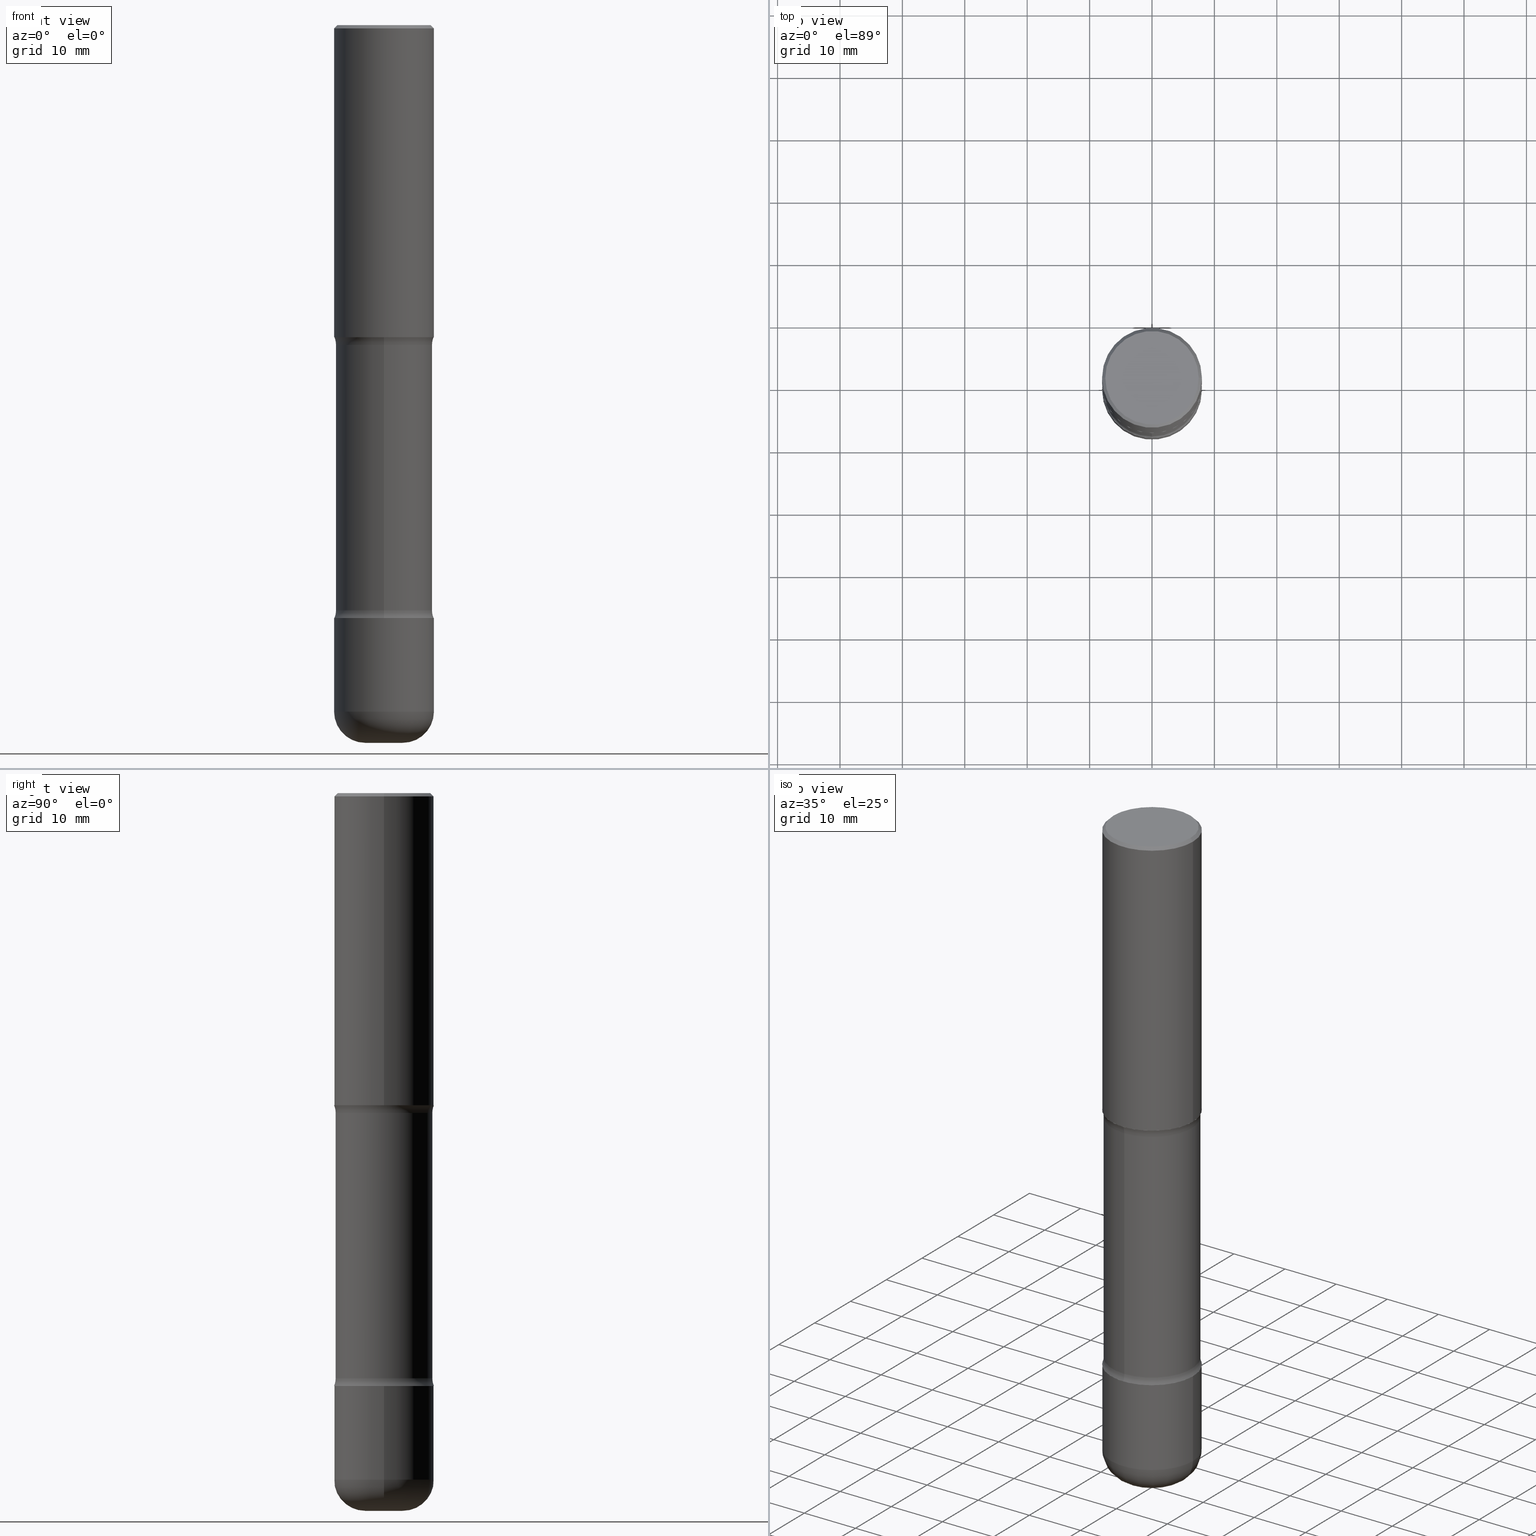
[diagram: canonical four-view strip — front | top / right | iso, engineering-drawing reading convention]
A machine part, canonical four-view strip (front | top / right | iso — engineering-drawing reading convention). The complete STEP part file that produces these views, byte-faithful:
ISO-10303-21;
HEADER;
FILE_DESCRIPTION (( 'STEP AP203' ),
    '1' );
FILE_NAME ('46937.STEP',
    '2024-03-02T06:03:13',
    ( '' ),
    ( '' ),
    'SwSTEP 2.0',
    'SolidWorks 2023',
    '' );
FILE_SCHEMA (( 'CONFIG_CONTROL_DESIGN' ));
ENDSEC;

DATA;
#1 = EDGE_CURVE ( 'NONE', #179, #252, #18, .T. ) ;
#2 = ORIENTED_EDGE ( 'NONE', *, *, #177, .F. ) ;
#3 = CARTESIAN_POINT ( 'NONE',  ( -0.1180500000000002936, -1.392596954901650053E-14, -4.527600000000000513 ) ) ;
#4 = ORIENTED_EDGE ( 'NONE', *, *, #161, .F. ) ;
#5 = ORIENTED_EDGE ( 'NONE', *, *, #34, .T. ) ;
#6 = AXIS2_PLACEMENT_3D ( 'NONE', #396, #95, #315 ) ;
#7 = SECURITY_CLASSIFICATION ( '', '', #330 ) ;
#8 = EDGE_LOOP ( 'NONE', ( #353, #266, #520, #314 ) ) ;
#9 = ORIENTED_EDGE ( 'NONE', *, *, #55, .F. ) ;
#10 = CARTESIAN_POINT ( 'NONE',  ( 4.813905344975441835E-29, -6.872981015512731707E-15, -1.968500000000000139 ) ) ;
#11 = CARTESIAN_POINT ( 'NONE',  ( 0.3149500000000002298, -1.525812259887842581E-14, -3.740200000000000191 ) ) ;
#12 = FACE_OUTER_BOUND ( 'NONE', #262, .T. ) ;
#13 = DIRECTION ( 'NONE',  ( -2.445468806185136597E-29, 3.491481338843145583E-15, 1.000000000000000000 ) ) ;
#14 = AXIS2_PLACEMENT_3D ( 'NONE', #411, #210, #17 ) ;
#15 = ORIENTED_EDGE ( 'NONE', *, *, #514, .F. ) ;
#16 = FACE_OUTER_BOUND ( 'NONE', #219, .T. ) ;
#17 = DIRECTION ( 'NONE',  ( 1.000000000000000000, -6.982962677686264344E-15, 0.000000000000000000 ) ) ;
#18 = CIRCLE ( 'NONE', #345, 0.3049999999999999378 ) ;
#19 = AXIS2_PLACEMENT_3D ( 'NONE', #337, #77, #248 ) ;
#20 = DIRECTION ( 'NONE',  ( 1.000000000000000000, -6.860497997771530774E-15, 4.841945768327149582E-29 ) ) ;
#21 = DIRECTION ( 'NONE',  ( -6.982962677686266711E-15, -1.000000000000000000, 3.491481338843145583E-15 ) ) ;
#22 = DIRECTION ( 'NONE',  ( 6.982962677686265922E-15, 1.000000000000000000, -3.397830769241806549E-15 ) ) ;
#23 = APPROVAL_DATE_TIME ( #154, #407 ) ;
#24 = CARTESIAN_POINT ( 'NONE',  ( 1.107210456688382522E-28, -1.580803090974622705E-14, -4.527600000000000513 ) ) ;
#25 = ADVANCED_FACE ( 'NONE', ( #12 ), #425, .T. ) ;
#26 = DIRECTION ( 'NONE',  ( -2.445468806185136877E-29, 3.491481338843145188E-15, 1.000000000000000000 ) ) ;
#27 = DIRECTION ( 'NONE',  ( -2.445468806185136597E-29, 3.491481338843145583E-15, 1.000000000000000000 ) ) ;
#28 = DIRECTION ( 'NONE',  ( -2.445468806185136597E-29, 3.491481338843145583E-15, 1.000000000000000000 ) ) ;
#29 = CARTESIAN_POINT ( 'NONE',  ( -3.560724751056930893E-29, -3.676307534196019102E-14, -4.527600000000000513 ) ) ;
#30 = LINE ( 'NONE', #247, #559 ) ;
#31 = CIRCLE ( 'NONE', #105, 0.1180500000000002936 ) ;
#32 = DIRECTION ( 'NONE',  ( 2.438088387897960049E-29, -3.491481338843145188E-15, -1.000000000000000000 ) ) ;
#33 = DIRECTION ( 'NONE',  ( 1.000000000000000000, -6.982962677686263555E-15, 0.000000000000000000 ) ) ;
#34 = EDGE_CURVE ( 'NONE', #447, #39, #319, .T. ) ;
#35 = FACE_OUTER_BOUND ( 'NONE', #183, .T. ) ;
#36 = CARTESIAN_POINT ( 'NONE',  ( 9.146542428893648262E-29, -1.305883850354113437E-14, -3.740200000000000191 ) ) ;
#37 = DIMENSIONAL_EXPONENTS ( 1.000000000000000000, 0.000000000000000000, 0.000000000000000000, 0.000000000000000000, 0.000000000000000000, 0.000000000000000000, 0.000000000000000000 ) ;
#38 = APPLICATION_PROTOCOL_DEFINITION ( 'international standard', 'config_control_design', 1994, #433 ) ;
#39 = VERTEX_POINT ( 'NONE', #291 ) ;
#40 = DIRECTION ( 'NONE',  ( 1.000000000000000000, 0.000000000000000000, 0.000000000000000000 ) ) ;
#41 = AXIS2_PLACEMENT_3D ( 'NONE', #495, #135, #483 ) ;
#42 = CIRCLE ( 'NONE', #122, 0.3149499999999998967 ) ;
#43 = ORIENTED_EDGE ( 'NONE', *, *, #249, .T. ) ;
#44 = ORIENTED_EDGE ( 'NONE', *, *, #387, .T. ) ;
#45 = ADVANCED_FACE ( 'NONE', ( #110 ), #272, .T. ) ;
#46 = DIRECTION ( 'NONE',  ( -2.445468806185136597E-29, 3.491481338843145583E-15, 1.000000000000000000 ) ) ;
#47 = ORIENTED_EDGE ( 'NONE', *, *, #227, .F. ) ;
#48 = ORIENTED_EDGE ( 'NONE', *, *, #242, .T. ) ;
#49 = CYLINDRICAL_SURFACE ( 'NONE', #156, 0.3049999999999999378 ) ;
#50 = ORIENTED_EDGE ( 'NONE', *, *, #59, .F. ) ;
#51 = ORIENTED_EDGE ( 'NONE', *, *, #499, .F. ) ;
#52 = CIRCLE ( 'NONE', #368, 0.3149500000000001743 ) ;
#53 = AXIS2_PLACEMENT_3D ( 'NONE', #205, #329, #371 ) ;
#54 = ORIENTED_EDGE ( 'NONE', *, *, #177, .T. ) ;
#55 = EDGE_CURVE ( 'NONE', #39, #133, #426, .T. ) ;
#56 = ORIENTED_EDGE ( 'NONE', *, *, #521, .T. ) ;
#57 = DIRECTION ( 'NONE',  ( -2.445468806185136597E-29, 3.491481338843145583E-15, 1.000000000000000000 ) ) ;
#58 = FACE_OUTER_BOUND ( 'NONE', #444, .T. ) ;
#59 = EDGE_CURVE ( 'NONE', #221, #218, #52, .T. ) ;
#60 = AXIS2_PLACEMENT_3D ( 'NONE', #10, #57, #496 ) ;
#61 = ORIENTED_EDGE ( 'NONE', *, *, #507, .T. ) ;
#62 = APPROVAL_PERSON_ORGANIZATION ( #175, #539, #515 ) ;
#63 = PERSON_AND_ORGANIZATION ( #398, #92 ) ;
#64 = DIRECTION ( 'NONE',  ( 6.982962677686266711E-15, 1.000000000000000000, -3.582751467100674095E-15 ) ) ;
#65 = DIRECTION ( 'NONE',  ( 2.510864649412157880E-29, -3.397830769241806549E-15, -1.000000000000000000 ) ) ;
#66 = DIRECTION ( 'NONE',  ( -1.000000000000000000, 6.982962677686265922E-15, -4.883557194083112901E-29 ) ) ;
#67 = VERTEX_POINT ( 'NONE', #216 ) ;
#68 = ADVANCED_BREP_SHAPE_REPRESENTATION ( '46937', ( #76, #449, #75, #472 ), #463 ) ;
#69 = DIRECTION ( 'NONE',  ( 1.000000000000000000, -6.982962677686266711E-15, 4.883557194083112901E-29 ) ) ;
#70 = CARTESIAN_POINT ( 'NONE',  ( 4.838038961945526264E-29, -7.180209988345923531E-15, -2.017372256956273979 ) ) ;
#71 = CIRCLE ( 'NONE', #137, 0.1249999999999999584 ) ;
#72 = FACE_OUTER_BOUND ( 'NONE', #432, .T. ) ;
#73 = DIRECTION ( 'NONE',  ( 1.000000000000000000, -6.982962677686265922E-15, 0.000000000000000000 ) ) ;
#74 = ADVANCED_FACE ( 'NONE', ( #340 ), #49, .T. ) ;
#75 = MANIFOLD_SOLID_BREP ( 'Body-Move/Copy2[4]', #392 ) ;
#76 = MANIFOLD_SOLID_BREP ( 'Body-Move/Copy2[1]', #268 ) ;
#77 = DIRECTION ( 'NONE',  ( 2.510864649412157880E-29, -3.397830769241806549E-15, -1.000000000000000000 ) ) ;
#78 = CYLINDRICAL_SURFACE ( 'NONE', #488, 0.3149500000000002853 ) ;
#79 = FACE_OUTER_BOUND ( 'NONE', #255, .T. ) ;
#80 = EDGE_CURVE ( 'NONE', #221, #97, #164, .T. ) ;
#81 = CARTESIAN_POINT ( 'NONE',  ( 9.027026849019217051E-29, -1.288820193039115935E-14, -3.691327743043726795 ) ) ;
#82 = AXIS2_PLACEMENT_3D ( 'NONE', #29, #333, #381 ) ;
#83 = CARTESIAN_POINT ( 'NONE',  ( 4.890937612370289799E-31, -6.982962677686315028E-17, -0.02000000000000006981 ) ) ;
#84 = APPROVAL_STATUS ( 'not_yet_approved' ) ;
#85 = EDGE_LOOP ( 'NONE', ( #236, #305, #211, #560 ) ) ;
#86 = PERSON_AND_ORGANIZATION ( #398, #92 ) ;
#87 = CC_DESIGN_PERSON_AND_ORGANIZATION_ASSIGNMENT ( #86, #103, ( #193 ) ) ;
#88 = ORIENTED_EDGE ( 'NONE', *, *, #521, .F. ) ;
#89 = ADVANCED_FACE ( 'NONE', ( #544 ), #467, .F. ) ;
#90 = DIRECTION ( 'NONE',  ( -6.982962677686265922E-15, -1.000000000000000000, 3.397830769241806549E-15 ) ) ;
#91 = AXIS2_PLACEMENT_3D ( 'NONE', #458, #235, #542 ) ;
#92 = ORGANIZATION ( 'UNSPECIFIED', 'UNSPECIFIED', '' ) ;
#93 = VERTEX_POINT ( 'NONE', #423 ) ;
#94 = VERTEX_POINT ( 'NONE', #370 ) ;
#95 = DIRECTION ( 'NONE',  ( -2.445468806185136597E-29, 3.491481338843145583E-15, 1.000000000000000000 ) ) ;
#96 = EDGE_LOOP ( 'NONE', ( #180, #112, #48, #224 ) ) ;
#97 = VERTEX_POINT ( 'NONE', #509 ) ;
#98 = CARTESIAN_POINT ( 'NONE',  ( -0.2949499999999998789, 2.094539655171994924E-15, 1.280553747028672311E-17 ) ) ;
#99 = AXIS2_PLACEMENT_3D ( 'NONE', #100, #412, #326 ) ;
#100 = CARTESIAN_POINT ( 'NONE',  ( 4.820755151858623476E-29, -7.204961388123744804E-15, -2.017372256956273979 ) ) ;
#101 = PLANE ( 'NONE',  #192 ) ;
#102 = ADVANCED_FACE ( 'NONE', ( #198 ), #121, .F. ) ;
#103 = PERSON_AND_ORGANIZATION_ROLE ( 'design_supplier' ) ;
#104 = ADVANCED_FACE ( 'NONE', ( #373 ), #111, .T. ) ;
#105 = AXIS2_PLACEMENT_3D ( 'NONE', #24, #155, #424 ) ;
#106 = ORIENTED_EDGE ( 'NONE', *, *, #364, .T. ) ;
#107 = TOROIDAL_SURFACE ( 'NONE', #139, 0.4300000000000000488, 0.1249999999999999861 ) ;
#108 = DIRECTION ( 'NONE',  ( -2.445468806185136597E-29, 3.491481338843145583E-15, 1.000000000000000000 ) ) ;
#109 = FACE_OUTER_BOUND ( 'NONE', #273, .T. ) ;
#110 = FACE_OUTER_BOUND ( 'NONE', #388, .T. ) ;
#111 = PLANE ( 'NONE',  #82 ) ;
#112 = ORIENTED_EDGE ( 'NONE', *, *, #59, .T. ) ;
#113 = CARTESIAN_POINT ( 'NONE',  ( 0.3149499999999998967, -2.230543471175006266E-15, -0.02000000000000006981 ) ) ;
#114 = CARTESIAN_POINT ( 'NONE',  ( 2.129803616694422103E-15, 0.3049999999999842282, -4.527600000000001401 ) ) ;
#115 = DIRECTION ( 'NONE',  ( 1.000000000000000000, -6.982962677686269077E-15, 0.000000000000000000 ) ) ;
#116 = CIRCLE ( 'NONE', #201, 0.3149500000000003408 ) ;
#117 = DIRECTION ( 'NONE',  ( 6.982962677686265922E-15, 1.000000000000000000, -3.397830769241806549E-15 ) ) ;
#118 = ADVANCED_FACE ( 'NONE', ( #503 ), #362, .F. ) ;
#119 = DIRECTION ( 'NONE',  ( 1.000000000000000000, -6.982962677686267499E-15, 4.876176775795936353E-29 ) ) ;
#120 = PERSON_AND_ORGANIZATION ( #398, #92 ) ;
#121 = TOROIDAL_SURFACE ( 'NONE', #292, 0.4299999999999999378, 0.1249999999999999861 ) ;
#122 = AXIS2_PLACEMENT_3D ( 'NONE', #295, #468, #73 ) ;
#123 = EDGE_LOOP ( 'NONE', ( #44, #267, #176, #477 ) ) ;
#124 = APPROVAL_DATE_TIME ( #349, #431 ) ;
#125 = VERTEX_POINT ( 'NONE', #464 ) ;
#126 = ADVANCED_FACE ( 'NONE', ( #132 ), #408, .T. ) ;
#127 = DATE_AND_TIME ( #207, #369 ) ;
#128 = TOROIDAL_SURFACE ( 'NONE', #505, 0.4300000000000000488, 0.1249999999999999861 ) ;
#129 = CC_DESIGN_APPROVAL ( #431, ( #193 ) ) ;
#130 = ORIENTED_EDGE ( 'NONE', *, *, #169, .F. ) ;
#131 = ORIENTED_EDGE ( 'NONE', *, *, #296, .F. ) ;
#132 = FACE_OUTER_BOUND ( 'NONE', #96, .T. ) ;
#133 = VERTEX_POINT ( 'NONE', #11 ) ;
#134 = ORIENTED_EDGE ( 'NONE', *, *, #334, .T. ) ;
#135 = DIRECTION ( 'NONE',  ( -1.000000000000000000, 6.982962677686265922E-15, -4.883557194083112901E-29 ) ) ;
#136 = EDGE_LOOP ( 'NONE', ( #530, #358, #478, #439 ) ) ;
#137 = AXIS2_PLACEMENT_3D ( 'NONE', #372, #20, #160 ) ;
#138 = CARTESIAN_POINT ( 'NONE',  ( 4.698043529530127941E-29, -7.038901729675425288E-15, -1.968500000000000139 ) ) ;
#139 = AXIS2_PLACEMENT_3D ( 'NONE', #81, #379, #117 ) ;
#140 = DIRECTION ( 'NONE',  ( -6.982962677686267499E-15, -1.000000000000000000, 0.000000000000000000 ) ) ;
#141 = DIRECTION ( 'NONE',  ( 6.860497997771532351E-15, 1.000000000000000000, 0.000000000000000000 ) ) ;
#142 = CARTESIAN_POINT ( 'NONE',  ( 1.112359725384078225E-28, -1.573429045124212958E-14, -4.527600000000000513 ) ) ;
#143 = CARTESIAN_POINT ( 'NONE',  ( 2.199284095337339175E-15, 0.3149499999999932909, -1.968500000000001249 ) ) ;
#144 = LINE ( 'NONE', #328, #512 ) ;
#145 = CIRCLE ( 'NONE', #462, 0.3049999999999999933 ) ;
#146 = ORIENTED_EDGE ( 'NONE', *, *, #466, .F. ) ;
#147 = AXIS2_PLACEMENT_3D ( 'NONE', #36, #308, #386 ) ;
#148 = CALENDAR_DATE ( 2024, 2, 3 ) ;
#149 = DIRECTION ( 'NONE',  ( 2.510864649412157880E-29, -3.397830769241806549E-15, -1.000000000000000000 ) ) ;
#150 = ADVANCED_FACE ( 'NONE', ( #228 ), #336, .T. ) ;
#151 = PERSON_AND_ORGANIZATION ( #398, #92 ) ;
#152 = DIRECTION ( 'NONE',  ( 2.510864649412157880E-29, -3.397830769241806549E-15, -1.000000000000000000 ) ) ;
#153 = CC_DESIGN_DATE_AND_TIME_ASSIGNMENT ( #127, #557, ( #492 ) ) ;
#154 = DATE_AND_TIME ( #148, #202 ) ;
#155 = DIRECTION ( 'NONE',  ( -2.445468806185136597E-29, 3.491481338843145583E-15, 1.000000000000000000 ) ) ;
#156 = AXIS2_PLACEMENT_3D ( 'NONE', #142, #527, #556 ) ;
#157 = CIRCLE ( 'NONE', #427, 0.3149500000000002298 ) ;
#158 = EDGE_CURVE ( 'NONE', #125, #179, #445, .T. ) ;
#159 = DIRECTION ( 'NONE',  ( -2.445468806185136597E-29, 3.491481338843145583E-15, 1.000000000000000000 ) ) ;
#160 = DIRECTION ( 'NONE',  ( 6.860497997771532351E-15, 1.000000000000000000, 0.000000000000000000 ) ) ;
#161 = EDGE_CURVE ( 'NONE', #214, #347, #498, .T. ) ;
#162 = CARTESIAN_POINT ( 'NONE',  ( 4.813905344975441835E-29, -6.872981015512731707E-15, -1.968500000000000139 ) ) ;
#163 = CARTESIAN_POINT ( 'NONE',  ( 0.000000000000000000, 0.000000000000000000, 0.000000000000000000 ) ) ;
#164 = LINE ( 'NONE', #460, #415 ) ;
#165 = CIRCLE ( 'NONE', #220, 0.1249999999999999584 ) ;
#166 = TOROIDAL_SURFACE ( 'NONE', #404, 0.1180500000000002658, 0.1969000000000001582 ) ;
#167 = APPROVAL_ROLE ( '' ) ;
#168 = LOCAL_TIME ( 1, 3, 13.00000000000000000, #250 ) ;
#169 = EDGE_CURVE ( 'NONE', #309, #190, #541, .T. ) ;
#170 = ORIENTED_EDGE ( 'NONE', *, *, #403, .T. ) ;
#171 = ORIENTED_EDGE ( 'NONE', *, *, #413, .T. ) ;
#172 = DIRECTION ( 'NONE',  ( 0.000000000000000000, 0.000000000000000000, 1.000000000000000000 ) ) ;
#173 = DESIGN_CONTEXT ( 'detailed design', #280, 'design' ) ;
#174 = ORIENTED_EDGE ( 'NONE', *, *, #1, .F. ) ;
#175 = PERSON_AND_ORGANIZATION ( #398, #92 ) ;
#176 = ORIENTED_EDGE ( 'NONE', *, *, #507, .F. ) ;
#177 = EDGE_CURVE ( 'NONE', #67, #253, #116, .T. ) ;
#178 = AXIS2_PLACEMENT_3D ( 'NONE', #222, #182, #538 ) ;
#179 = VERTEX_POINT ( 'NONE', #443 ) ;
#180 = ORIENTED_EDGE ( 'NONE', *, *, #80, .F. ) ;
#181 = CARTESIAN_POINT ( 'NONE',  ( 4.890937612370289799E-31, -6.982962677686315028E-17, -0.02000000000000006981 ) ) ;
#182 = DIRECTION ( 'NONE',  ( -2.438088387897960049E-29, 3.491481338843145188E-15, 1.000000000000000000 ) ) ;
#183 = EDGE_LOOP ( 'NONE', ( #15, #43, #245, #47 ) ) ;
#184 = CARTESIAN_POINT ( 'NONE',  ( 4.890937612370289799E-31, -6.982962677686315028E-17, -0.02000000000000006981 ) ) ;
#185 = VECTOR ( 'NONE', #516, 39.37007874015748143 ) ;
#186 = VECTOR ( 'NONE', #26, 39.37007874015748143 ) ;
#187 = EDGE_CURVE ( 'NONE', #97, #321, #558, .T. ) ;
#188 = PLANE ( 'NONE',  #178 ) ;
#189 = CARTESIAN_POINT ( 'NONE',  ( -0.1180500000000002658, -1.428176253456320999E-14, -4.330700000000000216 ) ) ;
#190 = VERTEX_POINT ( 'NONE', #98 ) ;
#191 = ORIENTED_EDGE ( 'NONE', *, *, #227, .T. ) ;
#192 = AXIS2_PLACEMENT_3D ( 'NONE', #537, #474, #90 ) ;
#193 = PRODUCT_DEFINITION_FORMATION_WITH_SPECIFIED_SOURCE ( 'ANY', '', #351, .NOT_KNOWN. ) ;
#194 = CC_DESIGN_PERSON_AND_ORGANIZATION_ASSIGNMENT ( #304, #476, ( #193 ) ) ;
#195 = DIRECTION ( 'NONE',  ( 2.510864649412157600E-29, -3.397830769241806549E-15, -1.000000000000000000 ) ) ;
#196 = FACE_OUTER_BOUND ( 'NONE', #8, .T. ) ;
#197 = EDGE_CURVE ( 'NONE', #93, #261, #145, .T. ) ;
#198 = FACE_OUTER_BOUND ( 'NONE', #350, .T. ) ;
#199 = CARTESIAN_POINT ( 'NONE',  ( 9.023830806565153848E-29, -1.289277884509281722E-14, -3.691327743043726795 ) ) ;
#200 = CC_DESIGN_PERSON_AND_ORGANIZATION_ASSIGNMENT ( #430, #383, ( #492 ) ) ;
#201 = AXIS2_PLACEMENT_3D ( 'NONE', #138, #531, #533 ) ;
#202 = LOCAL_TIME ( 1, 3, 13.00000000000000000, #234 ) ;
#203 = DIRECTION ( 'NONE',  ( 6.982962677686266711E-15, 1.000000000000000000, -3.582751467100674095E-15 ) ) ;
#204 = CALENDAR_DATE ( 2024, 2, 3 ) ;
#205 = CARTESIAN_POINT ( 'NONE',  ( 9.146542428893648262E-29, -1.305883850354113437E-14, -3.740200000000000191 ) ) ;
#206 = FACE_OUTER_BOUND ( 'NONE', #136, .T. ) ;
#207 = CALENDAR_DATE ( 2024, 2, 3 ) ;
#208 = ADVANCED_FACE ( 'NONE', ( #58 ), #101, .F. ) ;
#209 = CARTESIAN_POINT ( 'NONE',  ( 0.3149500000000001743, -9.072265110850023156E-15, -1.968500000000000139 ) ) ;
#210 = DIRECTION ( 'NONE',  ( -2.445468806185136597E-29, 3.491481338843145583E-15, 1.000000000000000000 ) ) ;
#211 = ORIENTED_EDGE ( 'NONE', *, *, #378, .T. ) ;
#212 = AXIS2_PLACEMENT_3D ( 'NONE', #189, #448, #264 ) ;
#213 = CALENDAR_DATE ( 2024, 2, 3 ) ;
#214 = VERTEX_POINT ( 'NONE', #3 ) ;
#215 = EDGE_LOOP ( 'NONE', ( #307, #146, #312, #528 ) ) ;
#216 = CARTESIAN_POINT ( 'NONE',  ( -2.160713844398098792E-15, -0.3149500000000073907, -1.968499999999999028 ) ) ;
#217 = DIRECTION ( 'NONE',  ( 6.982962677686265922E-15, 1.000000000000000000, -3.397830769241806549E-15 ) ) ;
#218 = VERTEX_POINT ( 'NONE', #209 ) ;
#219 = EDGE_LOOP ( 'NONE', ( #4, #522, #5, #441 ) ) ;
#220 = AXIS2_PLACEMENT_3D ( 'NONE', #450, #66, #140 ) ;
#221 = VERTEX_POINT ( 'NONE', #259 ) ;
#222 = CARTESIAN_POINT ( 'NONE',  ( 4.813905344975441835E-29, -6.872981015512731707E-15, -1.968500000000000139 ) ) ;
#223 = ORIENTED_EDGE ( 'NONE', *, *, #197, .T. ) ;
#224 = ORIENTED_EDGE ( 'NONE', *, *, #187, .F. ) ;
#225 = PRODUCT_RELATED_PRODUCT_CATEGORY ( 'detail', '', ( #351 ) ) ;
#226 = DIRECTION ( 'NONE',  ( 1.000000000000000000, -6.860497997771530774E-15, 4.841945768327149582E-29 ) ) ;
#227 = EDGE_CURVE ( 'NONE', #278, #133, #394, .T. ) ;
#228 = FACE_OUTER_BOUND ( 'NONE', #123, .T. ) ;
#229 = CARTESIAN_POINT ( 'NONE',  ( -0.3149500000000002298, -1.185184402255813608E-14, -3.740200000000000191 ) ) ;
#230 = AXIS2_PLACEMENT_3D ( 'NONE', #502, #32, #341 ) ;
#231 = DIRECTION ( 'NONE',  ( -2.445468806185136597E-29, 3.491481338843145583E-15, 1.000000000000000000 ) ) ;
#232 = CIRCLE ( 'NONE', #302, 0.3149500000000002853 ) ;
#233 = DIRECTION ( 'NONE',  ( 6.982962677686266711E-15, 1.000000000000000000, -3.582751467100674095E-15 ) ) ;
#234 = COORDINATED_UNIVERSAL_TIME_OFFSET ( 5, 0, .BEHIND. ) ;
#235 = DIRECTION ( 'NONE',  ( 2.510864649412157880E-29, -3.397830769241806549E-15, -1.000000000000000000 ) ) ;
#236 = ORIENTED_EDGE ( 'NONE', *, *, #364, .F. ) ;
#237 = AXIS2_PLACEMENT_3D ( 'NONE', #277, #231, #491 ) ;
#238 = CONICAL_SURFACE ( 'NONE', #246, 0.3149499999999998967, 0.7853981633974460586 ) ;
#239 = CALENDAR_DATE ( 2024, 2, 3 ) ;
#240 = DIRECTION ( 'NONE',  ( 1.000000000000000000, -6.982962677686266711E-15, 4.876176775795936353E-29 ) ) ;
#241 = DIRECTION ( 'NONE',  ( -2.445468806185136877E-29, 3.491481338843145188E-15, 1.000000000000000000 ) ) ;
#242 = EDGE_CURVE ( 'NONE', #218, #321, #144, .T. ) ;
#243 = UNCERTAINTY_MEASURE_WITH_UNIT (LENGTH_MEASURE( 1.000000000000000082E-05 ), #438, 'distance_accuracy_value', 'NONE');
#244 = DIRECTION ( 'NONE',  ( -2.445468806185136597E-29, 3.491481338843145583E-15, 1.000000000000000000 ) ) ;
#245 = ORIENTED_EDGE ( 'NONE', *, *, #55, .T. ) ;
#246 = AXIS2_PLACEMENT_3D ( 'NONE', #83, #258, #554 ) ;
#247 = CARTESIAN_POINT ( 'NONE',  ( -0.3149499999999998967, 2.129454468560425784E-15, -0.02000000000000006981 ) ) ;
#248 = DIRECTION ( 'NONE',  ( 6.982962677686265922E-15, 1.000000000000000000, -3.397830769241806549E-15 ) ) ;
#249 = EDGE_CURVE ( 'NONE', #347, #39, #269, .T. ) ;
#250 = COORDINATED_UNIVERSAL_TIME_OFFSET ( 5, 0, .BEHIND. ) ;
#251 = CC_DESIGN_PERSON_AND_ORGANIZATION_ASSIGNMENT ( #120, #511, ( #351 ) ) ;
#252 = VERTEX_POINT ( 'NONE', #536 ) ;
#253 = VERTEX_POINT ( 'NONE', #143 ) ;
#254 = APPLICATION_PROTOCOL_DEFINITION ( 'international standard', 'config_control_design', 1994, #280 ) ;
#255 = EDGE_LOOP ( 'NONE', ( #393, #2 ) ) ;
#256 = AXIS2_PLACEMENT_3D ( 'NONE', #265, #21, #115 ) ;
#257 = CIRCLE ( 'NONE', #549, 0.3049999999999999378 ) ;
#258 = DIRECTION ( 'NONE',  ( 2.445468806185136597E-29, -3.491481338843145583E-15, -1.000000000000000000 ) ) ;
#259 = CARTESIAN_POINT ( 'NONE',  ( -0.3149500000000001743, -1.233550974868359743E-15, -1.968500000000000139 ) ) ;
#260 = ADVANCED_FACE ( 'NONE', ( #494 ), #128, .F. ) ;
#261 = VERTEX_POINT ( 'NONE', #410 ) ;
#262 = EDGE_LOOP ( 'NONE', ( #130, #518, #170, #359 ) ) ;
#263 = EDGE_LOOP ( 'NONE', ( #484, #50 ) ) ;
#264 = DIRECTION ( 'NONE',  ( -1.000000000000000000, 7.105427357601006592E-15, 0.000000000000000000 ) ) ;
#265 = CARTESIAN_POINT ( 'NONE',  ( 0.1180500000000002658, -1.594489697822887608E-14, -4.330700000000000216 ) ) ;
#266 = ORIENTED_EDGE ( 'NONE', *, *, #360, .T. ) ;
#267 = ORIENTED_EDGE ( 'NONE', *, *, #161, .T. ) ;
#268 = CLOSED_SHELL ( 'NONE', ( #45, #150, #104, #317, #452, #547 ) ) ;
#269 = CIRCLE ( 'NONE', #384, 0.3149500000000002853 ) ;
#270 = AXIS2_PLACEMENT_3D ( 'NONE', #419, #473, #217 ) ;
#271 = DIRECTION ( 'NONE',  ( 6.982962677686266711E-15, 1.000000000000000000, -3.582751467100673306E-15 ) ) ;
#272 = CYLINDRICAL_SURFACE ( 'NONE', #357, 0.3149500000000002853 ) ;
#273 = EDGE_LOOP ( 'NONE', ( #223, #106, #174, #352 ) ) ;
#274 = EDGE_CURVE ( 'NONE', #261, #93, #327, .T. ) ;
#275 = CARTESIAN_POINT ( 'NONE',  ( 4.820755151858623476E-29, -7.204961388123744804E-15, -2.017372256956273979 ) ) ;
#276 = CYLINDRICAL_SURFACE ( 'NONE', #471, 0.3049999999999999378 ) ;
#277 = CARTESIAN_POINT ( 'NONE',  ( 0.000000000000000000, 0.000000000000000000, 0.000000000000000000 ) ) ;
#278 = VERTEX_POINT ( 'NONE', #229 ) ;
#279 = DIRECTION ( 'NONE',  ( -2.445468806185136597E-29, 3.491481338843145583E-15, 1.000000000000000000 ) ) ;
#280 = APPLICATION_CONTEXT ( 'configuration controlled 3d designs of mechanical parts and assemblies' ) ;
#281 = VECTOR ( 'NONE', #195, 39.37007874015748143 ) ;
#282 = ADVANCED_FACE ( 'NONE', ( #109 ), #276, .T. ) ;
#283 = ORIENTED_EDGE ( 'NONE', *, *, #413, .F. ) ;
#284 = DIRECTION ( 'NONE',  ( 1.000000000000000000, -6.982962677686261189E-15, 0.000000000000000000 ) ) ;
#285 = CARTESIAN_POINT ( 'NONE',  ( 4.698043529530127941E-29, -7.038901729675425288E-15, -1.968500000000000139 ) ) ;
#286 = EDGE_CURVE ( 'NONE', #253, #67, #525, .T. ) ;
#287 = CARTESIAN_POINT ( 'NONE',  ( 1.059059175894597327E-28, -1.512055823412801291E-14, -4.330700000000000216 ) ) ;
#288 = DIRECTION ( 'NONE',  ( -2.445468806185136877E-29, 3.491481338843145188E-15, 1.000000000000000000 ) ) ;
#289 = CARTESIAN_POINT ( 'NONE',  ( -0.3149500000000002853, 2.237854346276437562E-15, -1.549218606675783797E-29 ) ) ;
#290 = DIRECTION ( 'NONE',  ( -0.7071067811865459074, 2.468850131082240100E-15, -0.7071067811865491270 ) ) ;
#291 = CARTESIAN_POINT ( 'NONE',  ( 0.3149500000000003408, -1.731984232946530120E-14, -4.330700000000000216 ) ) ;
#292 = AXIS2_PLACEMENT_3D ( 'NONE', #70, #417, #22 ) ;
#293 = DIRECTION ( 'NONE',  ( -2.445468806185136597E-29, 3.491481338843145583E-15, 1.000000000000000000 ) ) ;
#294 = DIRECTION ( 'NONE',  ( 1.000000000000000000, -6.982962677686267499E-15, 4.876176775795936353E-29 ) ) ;
#295 = CARTESIAN_POINT ( 'NONE',  ( 4.890937612370289799E-31, -6.982962677686315028E-17, -0.02000000000000006981 ) ) ;
#296 = EDGE_CURVE ( 'NONE', #93, #253, #165, .T. ) ;
#297 = CARTESIAN_POINT ( 'NONE',  ( 9.146542428893648262E-29, -1.305883850354113437E-14, -3.740200000000000191 ) ) ;
#298 = DIRECTION ( 'NONE',  ( 2.510864649412157880E-29, -3.397830769241806549E-15, -1.000000000000000000 ) ) ;
#299 = DATE_AND_TIME ( #213, #168 ) ;
#300 = CLOSED_SHELL ( 'NONE', ( #469, #25, #555, #89, #493, #126 ) ) ;
#301 = AXIS2_PLACEMENT_3D ( 'NONE', #184, #486, #506 ) ;
#302 = AXIS2_PLACEMENT_3D ( 'NONE', #400, #293, #33 ) ;
#303 = LENGTH_MEASURE_WITH_UNIT ( LENGTH_MEASURE( 0.02539999999999999897 ), #479 );
#304 = PERSON_AND_ORGANIZATION ( #398, #92 ) ;
#305 = ORIENTED_EDGE ( 'NONE', *, *, #274, .T. ) ;
#306 = EDGE_CURVE ( 'NONE', #94, #125, #346, .T. ) ;
#307 = ORIENTED_EDGE ( 'NONE', *, *, #354, .F. ) ;
#308 = DIRECTION ( 'NONE',  ( 2.438088387897960049E-29, -3.491481338843145188E-15, -1.000000000000000000 ) ) ;
#309 = VERTEX_POINT ( 'NONE', #331 ) ;
#310 = CIRCLE ( 'NONE', #60, 0.3149500000000001743 ) ;
#311 = CIRCLE ( 'NONE', #53, 0.3149500000000002298 ) ;
#312 = ORIENTED_EDGE ( 'NONE', *, *, #422, .T. ) ;
#313 = COORDINATED_UNIVERSAL_TIME_OFFSET ( 5, 0, .BEHIND. ) ;
#314 = ORIENTED_EDGE ( 'NONE', *, *, #158, .F. ) ;
#315 = DIRECTION ( 'NONE',  ( 1.000000000000000000, -6.982962677686266711E-15, 4.883557194083112901E-29 ) ) ;
#316 = DIRECTION ( 'NONE',  ( 1.000000000000000000, -6.982962677686265922E-15, 0.000000000000000000 ) ) ;
#317 = ADVANCED_FACE ( 'NONE', ( #16 ), #166, .T. ) ;
#318 = ORIENTED_EDGE ( 'NONE', *, *, #1, .T. ) ;
#319 = CIRCLE ( 'NONE', #256, 0.1969000000000001582 ) ;
#320 = CARTESIAN_POINT ( 'NONE',  ( 1.107210456688382522E-28, -1.580803090974622705E-14, -4.527600000000000513 ) ) ;
#321 = VERTEX_POINT ( 'NONE', #113 ) ;
#322 = AXIS2_PLACEMENT_3D ( 'NONE', #453, #485, #365 ) ;
#323 = DIRECTION ( 'NONE',  ( 6.982962677686265922E-15, 1.000000000000000000, -3.469564049740289220E-15 ) ) ;
#324 = CARTESIAN_POINT ( 'NONE',  ( -0.3149500000000003408, -1.288270388785157219E-14, -4.330700000000000216 ) ) ;
#325 = EDGE_CURVE ( 'NONE', #218, #221, #310, .T. ) ;
#326 = DIRECTION ( 'NONE',  ( 6.982962677686266711E-15, 1.000000000000000000, -3.582751467100673306E-15 ) ) ;
#327 = CIRCLE ( 'NONE', #99, 0.3049999999999999933 ) ;
#328 = CARTESIAN_POINT ( 'NONE',  ( 0.3149500000000000077, -2.199284095337289871E-15, 1.535751875536930130E-29 ) ) ;
#329 = DIRECTION ( 'NONE',  ( -2.445468806185136597E-29, 3.491481338843145583E-15, 1.000000000000000000 ) ) ;
#330 = SECURITY_CLASSIFICATION_LEVEL ( 'unclassified' ) ;
#331 = CARTESIAN_POINT ( 'NONE',  ( 0.2949499999999998789, -2.127023677808859286E-15, 1.280553747031588939E-17 ) ) ;
#332 = CC_DESIGN_PERSON_AND_ORGANIZATION_ASSIGNMENT ( #63, #508, ( #7 ) ) ;
#333 = DIRECTION ( 'NONE',  ( 2.438088387897960049E-29, -3.491481338843145188E-15, -1.000000000000000000 ) ) ;
#334 = EDGE_CURVE ( 'NONE', #261, #67, #414, .T. ) ;
#335 = LINE ( 'NONE', #339, #534 ) ;
#336 = TOROIDAL_SURFACE ( 'NONE', #6, 0.1180500000000002658, 0.1969000000000001582 ) ;
#337 = CARTESIAN_POINT ( 'NONE',  ( 4.838038961945526264E-29, -7.180209988345923531E-15, -2.017372256956273979 ) ) ;
#338 = CYLINDRICAL_SURFACE ( 'NONE', #543, 0.3149500000000000077 ) ;
#339 = CARTESIAN_POINT ( 'NONE',  ( -2.092451889320205392E-15, -0.3050000000000157030, -4.527599999999998737 ) ) ;
#340 = FACE_OUTER_BOUND ( 'NONE', #85, .T. ) ;
#341 = DIRECTION ( 'NONE',  ( -1.000000000000000000, 6.982962677686265922E-15, -4.876176775795935793E-29 ) ) ;
#342 = PLANE ( 'NONE',  #270 ) ;
#343 =( NAMED_UNIT ( * ) SI_UNIT ( $, .STERADIAN. ) SOLID_ANGLE_UNIT ( ) );
#344 = DIRECTION ( 'NONE',  ( 1.000000000000000000, -6.982962677686269866E-15, 0.000000000000000000 ) ) ;
#345 = AXIS2_PLACEMENT_3D ( 'NONE', #457, #65, #233 ) ;
#346 = CIRCLE ( 'NONE', #91, 0.3149500000000002298 ) ;
#347 = VERTEX_POINT ( 'NONE', #324 ) ;
#348 = CC_DESIGN_APPROVAL ( #407, ( #7 ) ) ;
#349 = DATE_AND_TIME ( #204, #489 ) ;
#350 = EDGE_LOOP ( 'NONE', ( #490, #397, #389, #440 ) ) ;
#351 = PRODUCT ( '46937', '46937', '', ( #519 ) ) ;
#352 = ORIENTED_EDGE ( 'NONE', *, *, #378, .F. ) ;
#353 = ORIENTED_EDGE ( 'NONE', *, *, #306, .F. ) ;
#354 = EDGE_CURVE ( 'NONE', #309, #321, #455, .T. ) ;
#355 = APPROVAL_DATE_TIME ( #299, #539 ) ;
#356 = EDGE_LOOP ( 'NONE', ( #385, #134, #54, #131 ) ) ;
#357 = AXIS2_PLACEMENT_3D ( 'NONE', #421, #28, #294 ) ;
#358 = ORIENTED_EDGE ( 'NONE', *, *, #80, .T. ) ;
#359 = ORIENTED_EDGE ( 'NONE', *, *, #422, .F. ) ;
#360 = EDGE_CURVE ( 'NONE', #94, #252, #71, .T. ) ;
#361 = DIRECTION ( 'NONE',  ( -2.445468806185136597E-29, 3.491481338843145583E-15, 1.000000000000000000 ) ) ;
#362 = TOROIDAL_SURFACE ( 'NONE', #19, 0.4299999999999999378, 0.1249999999999999861 ) ;
#363 = DIRECTION ( 'NONE',  ( 2.510864649412157880E-29, -3.397830769241806549E-15, -1.000000000000000000 ) ) ;
#364 = EDGE_CURVE ( 'NONE', #261, #252, #335, .T. ) ;
#365 = DIRECTION ( 'NONE',  ( 1.000000000000000000, -6.982962677686267499E-15, 4.876053491004736589E-29 ) ) ;
#366 = ORIENTED_EDGE ( 'NONE', *, *, #466, .T. ) ;
#367 = DIRECTION ( 'NONE',  ( 1.000000000000000000, -6.982962677686263555E-15, 0.000000000000000000 ) ) ;
#368 = AXIS2_PLACEMENT_3D ( 'NONE', #162, #46, #344 ) ;
#369 = LOCAL_TIME ( 1, 3, 13.00000000000000000, #523 ) ;
#370 = CARTESIAN_POINT ( 'NONE',  ( -2.160713844398053432E-15, -0.3149500000000131639, -3.740199999999998859 ) ) ;
#371 = DIRECTION ( 'NONE',  ( 1.000000000000000000, -6.982962677686264344E-15, 0.000000000000000000 ) ) ;
#372 = CARTESIAN_POINT ( 'NONE',  ( -2.950014139041668531E-15, -0.4300000000000129829, -3.691327743043725018 ) ) ;
#373 = FACE_OUTER_BOUND ( 'NONE', #437, .T. ) ;
#374 = PLANE ( 'NONE',  #147 ) ;
#375 = DATE_TIME_ROLE ( 'classification_date' ) ;
#376 = AXIS2_PLACEMENT_3D ( 'NONE', #451, #226, #141 ) ;
#377 = CC_DESIGN_APPROVAL ( #539, ( #492 ) ) ;
#378 = EDGE_CURVE ( 'NONE', #93, #179, #504, .T. ) ;
#379 = DIRECTION ( 'NONE',  ( 2.510864649412157880E-29, -3.397830769241806549E-15, -1.000000000000000000 ) ) ;
#380 = APPROVAL_STATUS ( 'not_yet_approved' ) ;
#381 = DIRECTION ( 'NONE',  ( -1.000000000000000000, 6.982962677686265922E-15, -4.876176775795935793E-29 ) ) ;
#382 = DIRECTION ( 'NONE',  ( 0.7071067811865459074, -7.319954787623249734E-15, -0.7071067811865491270 ) ) ;
#383 = PERSON_AND_ORGANIZATION_ROLE ( 'creator' ) ;
#384 = AXIS2_PLACEMENT_3D ( 'NONE', #529, #279, #367 ) ;
#385 = ORIENTED_EDGE ( 'NONE', *, *, #274, .F. ) ;
#386 = DIRECTION ( 'NONE',  ( -1.000000000000000000, 6.982962677686265922E-15, -4.876176775795935793E-29 ) ) ;
#387 = EDGE_CURVE ( 'NONE', #447, #214, #31, .T. ) ;
#388 = EDGE_LOOP ( 'NONE', ( #61, #500, #88, #9 ) ) ;
#389 = ORIENTED_EDGE ( 'NONE', *, *, #296, .T. ) ;
#390 = ORIENTED_EDGE ( 'NONE', *, *, #360, .F. ) ;
#391 = ORIENTED_EDGE ( 'NONE', *, *, #169, .T. ) ;
#392 = CLOSED_SHELL ( 'NONE', ( #282, #395, #118, #102, #481, #208, #260, #74 ) ) ;
#393 = ORIENTED_EDGE ( 'NONE', *, *, #286, .F. ) ;
#394 = CIRCLE ( 'NONE', #14, 0.3149500000000002298 ) ;
#395 = ADVANCED_FACE ( 'NONE', ( #196 ), #107, .F. ) ;
#396 = CARTESIAN_POINT ( 'NONE',  ( 1.059059175894597327E-28, -1.512055823412801291E-14, -4.330700000000000216 ) ) ;
#397 = ORIENTED_EDGE ( 'NONE', *, *, #197, .F. ) ;
#398 = PERSON ( 'UNSPECIFIED', 'UNSPECIFIED', 'UNSPECIFIED', ('UNSPECIFIED'), ('UNSPECIFIED'), ('UNSPECIFIED') ) ;
#399 = CARTESIAN_POINT ( 'NONE',  ( 9.027026849019217051E-29, -1.288820193039115935E-14, -3.691327743043726795 ) ) ;
#400 = CARTESIAN_POINT ( 'NONE',  ( 1.059059175894597327E-28, -1.512055823412801291E-14, -4.330700000000000216 ) ) ;
#401 = DIRECTION ( 'NONE',  ( 2.510864649412157880E-29, -3.397830769241806549E-15, -1.000000000000000000 ) ) ;
#402 = DIRECTION ( 'NONE',  ( 2.510864649412157880E-29, -3.397830769241806549E-15, -1.000000000000000000 ) ) ;
#403 = EDGE_CURVE ( 'NONE', #321, #97, #42, .T. ) ;
#404 = AXIS2_PLACEMENT_3D ( 'NONE', #287, #13, #69 ) ;
#405 = CARTESIAN_POINT ( 'NONE',  ( 1.112359725384078225E-28, -1.573429045124212958E-14, -4.527600000000000513 ) ) ;
#406 = AXIS2_PLACEMENT_3D ( 'NONE', #461, #159, #428 ) ;
#407 = APPROVAL ( #418, 'UNSPECIFIED' ) ;
#408 = CYLINDRICAL_SURFACE ( 'NONE', #237, 0.3149500000000000077 ) ;
#409 = SHAPE_DEFINITION_REPRESENTATION ( #524, #68 ) ;
#410 = CARTESIAN_POINT ( 'NONE',  ( -2.126582866859183647E-15, -0.3050000000000072098, -2.017372256956272647 ) ) ;
#411 = CARTESIAN_POINT ( 'NONE',  ( 9.146542428893648262E-29, -1.305883850354113437E-14, -3.740200000000000191 ) ) ;
#412 = DIRECTION ( 'NONE',  ( 2.510864649412157880E-29, -3.397830769241806549E-15, -1.000000000000000000 ) ) ;
#413 = EDGE_CURVE ( 'NONE', #125, #94, #157, .T. ) ;
#414 = CIRCLE ( 'NONE', #376, 0.1249999999999999584 ) ;
#415 = VECTOR ( 'NONE', #288, 39.37007874015748143 ) ;
#416 = CC_DESIGN_SECURITY_CLASSIFICATION ( #7, ( #193 ) ) ;
#417 = DIRECTION ( 'NONE',  ( 2.510864649412157880E-29, -3.397830769241806549E-15, -1.000000000000000000 ) ) ;
#418 = APPROVAL_STATUS ( 'not_yet_approved' ) ;
#419 = CARTESIAN_POINT ( 'NONE',  ( 4.813905344975441835E-29, -6.872981015512731707E-15, -1.968500000000000139 ) ) ;
#420 = DIRECTION ( 'NONE',  ( 6.982962677686264344E-15, 1.000000000000000000, -3.469564049740290403E-15 ) ) ;
#421 = CARTESIAN_POINT ( 'NONE',  ( 0.000000000000000000, 0.000000000000000000, 0.000000000000000000 ) ) ;
#422 = EDGE_CURVE ( 'NONE', #190, #97, #30, .T. ) ;
#423 = CARTESIAN_POINT ( 'NONE',  ( 2.129803616694359388E-15, 0.3049999999999927769, -2.017372256956274867 ) ) ;
#424 = DIRECTION ( 'NONE',  ( 1.000000000000000000, -6.982962677686261189E-15, 0.000000000000000000 ) ) ;
#425 = CONICAL_SURFACE ( 'NONE', #301, 0.3149499999999998967, 0.7853981633974460586 ) ;
#426 = LINE ( 'NONE', #551, #185 ) ;
#427 = AXIS2_PLACEMENT_3D ( 'NONE', #297, #152, #420 ) ;
#428 = DIRECTION ( 'NONE',  ( 1.000000000000000000, -6.982962677686267499E-15, 4.876053491004736589E-29 ) ) ;
#429 = FACE_OUTER_BOUND ( 'NONE', #215, .T. ) ;
#430 = PERSON_AND_ORGANIZATION ( #398, #92 ) ;
#431 = APPROVAL ( #380, 'UNSPECIFIED' ) ;
#432 = EDGE_LOOP ( 'NONE', ( #56, #191 ) ) ;
#433 = APPLICATION_CONTEXT ( 'configuration controlled 3d designs of mechanical parts and assemblies' ) ;
#434 =( NAMED_UNIT ( * ) PLANE_ANGLE_UNIT ( ) SI_UNIT ( $, .RADIAN. ) );
#435 = AXIS2_PLACEMENT_3D ( 'NONE', #181, #361, #316 ) ;
#436 = AXIS2_PLACEMENT_3D ( 'NONE', #320, #108, #284 ) ;
#437 = EDGE_LOOP ( 'NONE', ( #475, #51 ) ) ;
#438 =( CONVERSION_BASED_UNIT ( 'INCH', #303 ) LENGTH_UNIT ( ) NAMED_UNIT ( #37 ) );
#439 = ORIENTED_EDGE ( 'NONE', *, *, #242, .F. ) ;
#440 = ORIENTED_EDGE ( 'NONE', *, *, #286, .T. ) ;
#441 = ORIENTED_EDGE ( 'NONE', *, *, #249, .F. ) ;
#442 = CC_DESIGN_DATE_AND_TIME_ASSIGNMENT ( #540, #375, ( #7 ) ) ;
#443 = CARTESIAN_POINT ( 'NONE',  ( 2.129803616694401198E-15, 0.3049999999999870592, -3.691327743043728127 ) ) ;
#444 = EDGE_LOOP ( 'NONE', ( #171, #480 ) ) ;
#445 = CIRCLE ( 'NONE', #41, 0.1249999999999999584 ) ;
#446 = CIRCLE ( 'NONE', #406, 0.2949499999999998789 ) ;
#447 = VERTEX_POINT ( 'NONE', #465 ) ;
#448 = DIRECTION ( 'NONE',  ( 7.105427357601001859E-15, 1.000000000000000000, -3.491481338843145583E-15 ) ) ;
#449 = MANIFOLD_SOLID_BREP ( 'Body-Move/Copy2[2]', #300 ) ;
#450 = CARTESIAN_POINT ( 'NONE',  ( 3.002673951405142333E-15, 0.4299999999999927769, -2.017372256956275756 ) ) ;
#451 = CARTESIAN_POINT ( 'NONE',  ( -2.950014139041709158E-15, -0.4300000000000070988, -2.017372256956272647 ) ) ;
#452 = ADVANCED_FACE ( 'NONE', ( #35 ), #78, .T. ) ;
#453 = CARTESIAN_POINT ( 'NONE',  ( -3.131554243005663153E-46, 4.471029511141347348E-32, 1.280553747030124924E-17 ) ) ;
#454 = COORDINATED_UNIVERSAL_TIME_OFFSET ( 5, 0, .BEHIND. ) ;
#455 = LINE ( 'NONE', #546, #487 ) ;
#456 = LOCAL_TIME ( 1, 3, 13.00000000000000000, #454 ) ;
#457 = CARTESIAN_POINT ( 'NONE',  ( 9.023830806565153848E-29, -1.289277884509281722E-14, -3.691327743043726795 ) ) ;
#458 = CARTESIAN_POINT ( 'NONE',  ( 9.146542428893648262E-29, -1.305883850354113437E-14, -3.740200000000000191 ) ) ;
#459 = EDGE_CURVE ( 'NONE', #252, #179, #257, .T. ) ;
#460 = CARTESIAN_POINT ( 'NONE',  ( -0.3149500000000000077, 2.237854346276435590E-15, -1.549218606675782676E-29 ) ) ;
#461 = CARTESIAN_POINT ( 'NONE',  ( -3.131554243005663153E-46, 4.471029511141347348E-32, 1.280553747030124924E-17 ) ) ;
#462 = AXIS2_PLACEMENT_3D ( 'NONE', #275, #402, #271 ) ;
#463 =( GEOMETRIC_REPRESENTATION_CONTEXT ( 3 ) GLOBAL_UNCERTAINTY_ASSIGNED_CONTEXT ( ( #243 ) ) GLOBAL_UNIT_ASSIGNED_CONTEXT ( ( #438, #434, #343 ) ) REPRESENTATION_CONTEXT ( 'NONE', 'WORKASPACE' ) );
#464 = CARTESIAN_POINT ( 'NONE',  ( 2.199284095337382168E-15, 0.3149499999999871291, -3.740200000000001079 ) ) ;
#465 = CARTESIAN_POINT ( 'NONE',  ( 0.1180500000000002936, -1.663236965384709338E-14, -4.527600000000000513 ) ) ;
#466 = EDGE_CURVE ( 'NONE', #190, #309, #446, .T. ) ;
#467 = PLANE ( 'NONE',  #230 ) ;
#468 = DIRECTION ( 'NONE',  ( -2.445468806185136597E-29, 3.491481338843145583E-15, 1.000000000000000000 ) ) ;
#469 = ADVANCED_FACE ( 'NONE', ( #206 ), #338, .T. ) ;
#470 = CARTESIAN_POINT ( 'NONE',  ( 0.000000000000000000, 0.000000000000000000, 0.000000000000000000 ) ) ;
#471 = AXIS2_PLACEMENT_3D ( 'NONE', #405, #149, #64 ) ;
#472 = AXIS2_PLACEMENT_3D ( 'NONE', #470, #172, #40 ) ;
#473 = DIRECTION ( 'NONE',  ( 2.510864649412157319E-29, -3.397830769241806549E-15, -1.000000000000000000 ) ) ;
#474 = DIRECTION ( 'NONE',  ( -2.510864649412157319E-29, 3.397830769241806549E-15, 1.000000000000000000 ) ) ;
#475 = ORIENTED_EDGE ( 'NONE', *, *, #387, .F. ) ;
#476 = PERSON_AND_ORGANIZATION_ROLE ( 'creator' ) ;
#477 = ORIENTED_EDGE ( 'NONE', *, *, #34, .F. ) ;
#478 = ORIENTED_EDGE ( 'NONE', *, *, #403, .F. ) ;
#479 =( LENGTH_UNIT ( ) NAMED_UNIT ( * ) SI_UNIT ( $, .METRE. ) );
#480 = ORIENTED_EDGE ( 'NONE', *, *, #306, .T. ) ;
#481 = ADVANCED_FACE ( 'NONE', ( #79 ), #342, .F. ) ;
#482 = EDGE_LOOP ( 'NONE', ( #366, #391 ) ) ;
#483 = DIRECTION ( 'NONE',  ( -6.982962677686267499E-15, -1.000000000000000000, 0.000000000000000000 ) ) ;
#484 = ORIENTED_EDGE ( 'NONE', *, *, #325, .F. ) ;
#485 = DIRECTION ( 'NONE',  ( -2.445468806185136597E-29, 3.491481338843145583E-15, 1.000000000000000000 ) ) ;
#486 = DIRECTION ( 'NONE',  ( 2.445468806185136597E-29, -3.491481338843145583E-15, -1.000000000000000000 ) ) ;
#487 = VECTOR ( 'NONE', #382, 39.37007874015748143 ) ;
#488 = AXIS2_PLACEMENT_3D ( 'NONE', #510, #27, #119 ) ;
#489 = LOCAL_TIME ( 1, 3, 13.00000000000000000, #313 ) ;
#490 = ORIENTED_EDGE ( 'NONE', *, *, #334, .F. ) ;
#491 = DIRECTION ( 'NONE',  ( 1.000000000000000000, -6.982962677686266711E-15, 4.876176775795936353E-29 ) ) ;
#492 = PRODUCT_DEFINITION ( 'UNKNOWN', '', #193, #173 ) ;
#493 = ADVANCED_FACE ( 'NONE', ( #497 ), #188, .F. ) ;
#494 = FACE_OUTER_BOUND ( 'NONE', #532, .T. ) ;
#495 = CARTESIAN_POINT ( 'NONE',  ( 3.002673951405185326E-15, 0.4299999999999871703, -3.691327743043728571 ) ) ;
#496 = DIRECTION ( 'NONE',  ( 1.000000000000000000, -6.982962677686269866E-15, 0.000000000000000000 ) ) ;
#497 = FACE_OUTER_BOUND ( 'NONE', #263, .T. ) ;
#498 = CIRCLE ( 'NONE', #212, 0.1969000000000001582 ) ;
#499 = EDGE_CURVE ( 'NONE', #214, #447, #526, .T. ) ;
#500 = ORIENTED_EDGE ( 'NONE', *, *, #514, .T. ) ;
#501 = DIRECTION ( 'NONE',  ( 6.982962677686265922E-15, 1.000000000000000000, -3.397830769241806549E-15 ) ) ;
#502 = CARTESIAN_POINT ( 'NONE',  ( 2.059624841783563274E-15, 0.2949499999999998789, -1.023409652156634744E-15 ) ) ;
#503 = FACE_OUTER_BOUND ( 'NONE', #356, .T. ) ;
#504 = LINE ( 'NONE', #114, #281 ) ;
#505 = AXIS2_PLACEMENT_3D ( 'NONE', #399, #401, #501 ) ;
#506 = DIRECTION ( 'NONE',  ( -1.000000000000000000, 6.982962677686265922E-15, 0.000000000000000000 ) ) ;
#507 = EDGE_CURVE ( 'NONE', #39, #347, #232, .T. ) ;
#508 = PERSON_AND_ORGANIZATION_ROLE ( 'classification_officer' ) ;
#509 = CARTESIAN_POINT ( 'NONE',  ( -0.3149499999999998967, 2.129454468560425784E-15, -0.02000000000000006981 ) ) ;
#510 = CARTESIAN_POINT ( 'NONE',  ( 0.000000000000000000, 0.000000000000000000, 0.000000000000000000 ) ) ;
#511 = PERSON_AND_ORGANIZATION_ROLE ( 'design_owner' ) ;
#512 = VECTOR ( 'NONE', #241, 39.37007874015748143 ) ;
#513 = APPROVAL_PERSON_ORGANIZATION ( #550, #431, #167 ) ;
#514 = EDGE_CURVE ( 'NONE', #347, #278, #552, .T. ) ;
#515 = APPROVAL_ROLE ( '' ) ;
#516 = DIRECTION ( 'NONE',  ( -2.445468806185136877E-29, 3.491481338843145188E-15, 1.000000000000000000 ) ) ;
#517 = ORIENTED_EDGE ( 'NONE', *, *, #158, .T. ) ;
#518 = ORIENTED_EDGE ( 'NONE', *, *, #354, .T. ) ;
#519 = MECHANICAL_CONTEXT ( 'NONE', #433, 'mechanical' ) ;
#520 = ORIENTED_EDGE ( 'NONE', *, *, #459, .T. ) ;
#521 = EDGE_CURVE ( 'NONE', #133, #278, #311, .T. ) ;
#522 = ORIENTED_EDGE ( 'NONE', *, *, #499, .T. ) ;
#523 = COORDINATED_UNIVERSAL_TIME_OFFSET ( 5, 0, .BEHIND. ) ;
#524 = PRODUCT_DEFINITION_SHAPE ( 'NONE', 'NONE',  #492 ) ;
#525 = CIRCLE ( 'NONE', #548, 0.3149500000000003408 ) ;
#526 = CIRCLE ( 'NONE', #436, 0.1180500000000002936 ) ;
#527 = DIRECTION ( 'NONE',  ( 2.510864649412157880E-29, -3.397830769241806549E-15, -1.000000000000000000 ) ) ;
#528 = ORIENTED_EDGE ( 'NONE', *, *, #187, .T. ) ;
#529 = CARTESIAN_POINT ( 'NONE',  ( 1.059059175894597327E-28, -1.512055823412801291E-14, -4.330700000000000216 ) ) ;
#530 = ORIENTED_EDGE ( 'NONE', *, *, #325, .T. ) ;
#531 = DIRECTION ( 'NONE',  ( 2.510864649412157880E-29, -3.397830769241806549E-15, -1.000000000000000000 ) ) ;
#532 = EDGE_LOOP ( 'NONE', ( #390, #283, #517, #318 ) ) ;
#533 = DIRECTION ( 'NONE',  ( 6.982962677686265922E-15, 1.000000000000000000, -3.469564049740289220E-15 ) ) ;
#534 = VECTOR ( 'NONE', #553, 39.37007874015748143 ) ;
#535 = APPROVAL_PERSON_ORGANIZATION ( #151, #407, #545 ) ;
#536 = CARTESIAN_POINT ( 'NONE',  ( -2.126582866859139470E-15, -0.3050000000000128719, -3.691327743043725906 ) ) ;
#537 = CARTESIAN_POINT ( 'NONE',  ( 9.146542428893648262E-29, -1.305883850354113437E-14, -3.740200000000000191 ) ) ;
#538 = DIRECTION ( 'NONE',  ( 1.000000000000000000, -6.982962677686265922E-15, 4.876176775795935793E-29 ) ) ;
#539 = APPROVAL ( #84, 'UNSPECIFIED' ) ;
#540 = DATE_AND_TIME ( #239, #456 ) ;
#541 = CIRCLE ( 'NONE', #322, 0.2949499999999998789 ) ;
#542 = DIRECTION ( 'NONE',  ( 6.982962677686264344E-15, 1.000000000000000000, -3.469564049740290403E-15 ) ) ;
#543 = AXIS2_PLACEMENT_3D ( 'NONE', #163, #244, #240 ) ;
#544 = FACE_OUTER_BOUND ( 'NONE', #482, .T. ) ;
#545 = APPROVAL_ROLE ( '' ) ;
#546 = CARTESIAN_POINT ( 'NONE',  ( 0.3149499999999998967, -2.230543471175006266E-15, -0.02000000000000006981 ) ) ;
#547 = ADVANCED_FACE ( 'NONE', ( #72 ), #374, .F. ) ;
#548 = AXIS2_PLACEMENT_3D ( 'NONE', #285, #363, #323 ) ;
#549 = AXIS2_PLACEMENT_3D ( 'NONE', #199, #298, #203 ) ;
#550 = PERSON_AND_ORGANIZATION ( #398, #92 ) ;
#551 = CARTESIAN_POINT ( 'NONE',  ( 0.3149500000000002853, -2.199284095337291843E-15, 1.535751875536931531E-29 ) ) ;
#552 = LINE ( 'NONE', #289, #186 ) ;
#553 = DIRECTION ( 'NONE',  ( 2.510864649412157600E-29, -3.397830769241806549E-15, -1.000000000000000000 ) ) ;
#554 = DIRECTION ( 'NONE',  ( -1.000000000000000000, 6.982962677686265922E-15, 0.000000000000000000 ) ) ;
#555 = ADVANCED_FACE ( 'NONE', ( #429 ), #238, .T. ) ;
#556 = DIRECTION ( 'NONE',  ( 6.982962677686266711E-15, 1.000000000000000000, -3.582751467100674095E-15 ) ) ;
#557 = DATE_TIME_ROLE ( 'creation_date' ) ;
#558 = CIRCLE ( 'NONE', #435, 0.3149499999999998967 ) ;
#559 = VECTOR ( 'NONE', #290, 39.37007874015748143 ) ;
#560 = ORIENTED_EDGE ( 'NONE', *, *, #459, .F. ) ;
ENDSEC;
END-ISO-10303-21;
